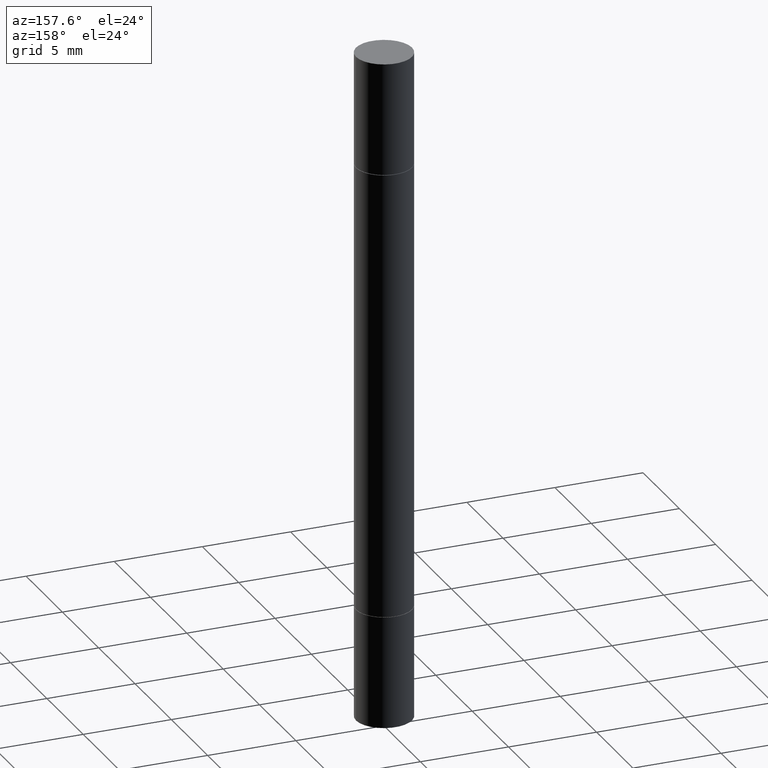
[diagram: clean part render]
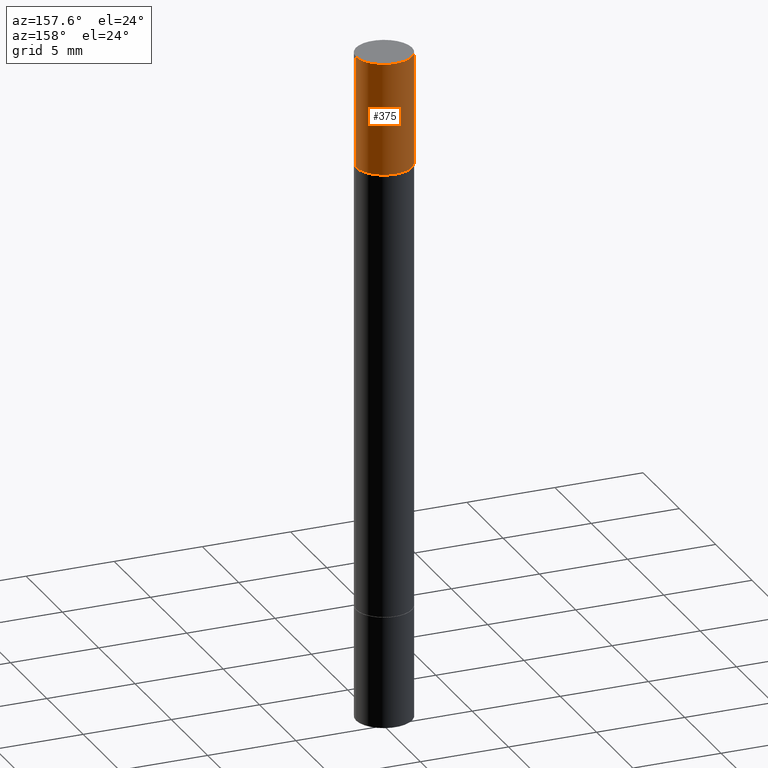
[diagram: same view with one face highlighted and labeled with its STEP entity id]
A machine part, auxiliary view. The second image highlights one B-rep face of the part: STEP entity #375.
In plain terms, the highlighted cylindrical surface (edge-blend (fillet) strip) has radius 1.5875 mm, axis along (-0, -0, -1).
Its self-contained STEP definition (entity closure, byte-faithful):
#22 = LINE ( 'NONE', #621, #525 ) ;
#29 = CARTESIAN_POINT ( 'NONE',  ( 3.668203209277704895E-29, 1.056804531456312920E-18, 2.731847993664263218E-16 ) ) ;
#36 = DIRECTION ( 'NONE',  ( 2.445468806185136597E-29, 3.492890411551752677E-15, 1.000000000000000000 ) ) ;
#62 = EDGE_CURVE ( 'NONE', #91, #165, #22, .T. ) ;
#79 = ORIENTED_EDGE ( 'NONE', *, *, #303, .T. ) ;
#91 = VERTEX_POINT ( 'NONE', #423 ) ;
#121 = LINE ( 'NONE', #651, #316 ) ;
#124 = EDGE_LOOP ( 'NONE', ( #386, #354, #245, #79 ) ) ;
#165 = VERTEX_POINT ( 'NONE', #234 ) ;
#194 = DIRECTION ( 'NONE',  ( 1.000000000000000000, -6.982962677686267499E-15, 0.000000000000000000 ) ) ;
#208 = DIRECTION ( 'NONE',  ( 1.000000000000000000, -6.982962677686261189E-15, 0.000000000000000000 ) ) ;
#234 = CARTESIAN_POINT ( 'NONE',  ( -0.06250000000000001388, -6.773372051792008208E-18, -0.2499999999999998057 ) ) ;
#245 = ORIENTED_EDGE ( 'NONE', *, *, #618, .T. ) ;
#249 = DIRECTION ( 'NONE',  ( 1.000000000000000000, -6.982962677686269077E-15, 0.000000000000000000 ) ) ;
#303 = EDGE_CURVE ( 'NONE', #421, #165, #424, .T. ) ;
#314 = CARTESIAN_POINT ( 'NONE',  ( 0.06250000000000001388, -1.308600965711874025E-15, -0.2499999999999998057 ) ) ;
#316 = VECTOR ( 'NONE', #429, 39.37007874015748143 ) ;
#329 = AXIS2_PLACEMENT_3D ( 'NONE', #545, #36, #249 ) ;
#332 = EDGE_CURVE ( 'NONE', #365, #91, #516, .T. ) ;
#354 = ORIENTED_EDGE ( 'NONE', *, *, #332, .F. ) ;
#364 = CARTESIAN_POINT ( 'NONE',  ( 0.06250000000000001388, -4.353783628239354613E-16, 2.731847993664263218E-16 ) ) ;
#365 = VERTEX_POINT ( 'NONE', #364 ) ;
#375 = ADVANCED_FACE ( 'NONE', ( #573 ), #674, .T. ) ;
#386 = ORIENTED_EDGE ( 'NONE', *, *, #62, .F. ) ;
#407 = DIRECTION ( 'NONE',  ( -2.445468806185136877E-29, -3.492890411551753071E-15, -1.000000000000000000 ) ) ;
#421 = VERTEX_POINT ( 'NONE', #314 ) ;
#423 = CARTESIAN_POINT ( 'NONE',  ( -0.06250000000000001388, -6.773372051792008208E-18, 2.731847993664278996E-16 ) ) ;
#424 = CIRCLE ( 'NONE', #329, 0.06250000000000001388 ) ;
#429 = DIRECTION ( 'NONE',  ( -2.445468806185136877E-29, -3.492890411551753071E-15, -1.000000000000000000 ) ) ;
#516 = CIRCLE ( 'NONE', #649, 0.06250000000000001388 ) ;
#525 = VECTOR ( 'NONE', #407, 39.37007874015748143 ) ;
#545 = CARTESIAN_POINT ( 'NONE',  ( 3.056836007731421306E-29, -8.721657983564820597E-16, -0.2499999999999998057 ) ) ;
#573 = FACE_OUTER_BOUND ( 'NONE', #124, .T. ) ;
#576 = DIRECTION ( 'NONE',  ( -2.445468806185136597E-29, -3.492890411551752677E-15, -1.000000000000000000 ) ) ;
#618 = EDGE_CURVE ( 'NONE', #365, #421, #121, .T. ) ;
#621 = CARTESIAN_POINT ( 'NONE',  ( -0.06250000000000001388, -4.809497687935452578E-15, -1.499999999999999778 ) ) ;
#636 = CARTESIAN_POINT ( 'NONE',  ( 0.000000000000000000, -5.238278812796173300E-15, -1.499999999999999778 ) ) ;
#649 = AXIS2_PLACEMENT_3D ( 'NONE', #29, #660, #194 ) ;
#651 = CARTESIAN_POINT ( 'NONE',  ( 0.06250000000000001388, -5.674713980151564181E-15, -1.499999999999999778 ) ) ;
#660 = DIRECTION ( 'NONE',  ( 2.445468806185136597E-29, 3.492890411551752677E-15, 1.000000000000000000 ) ) ;
#668 = AXIS2_PLACEMENT_3D ( 'NONE', #636, #576, #208 ) ;
#674 = CYLINDRICAL_SURFACE ( 'NONE', #668, 0.06250000000000001388 ) ;